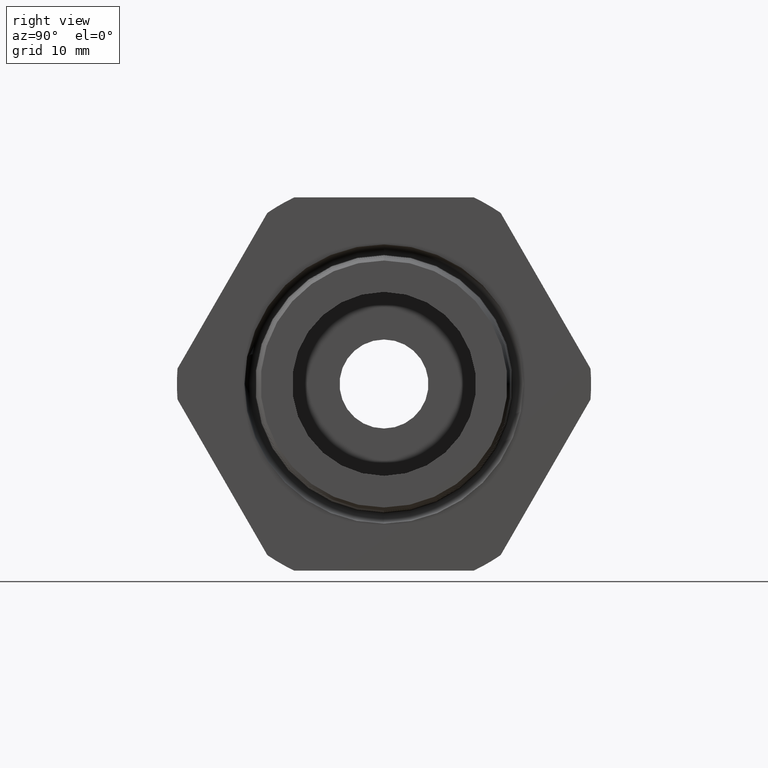
[diagram: clean part render]
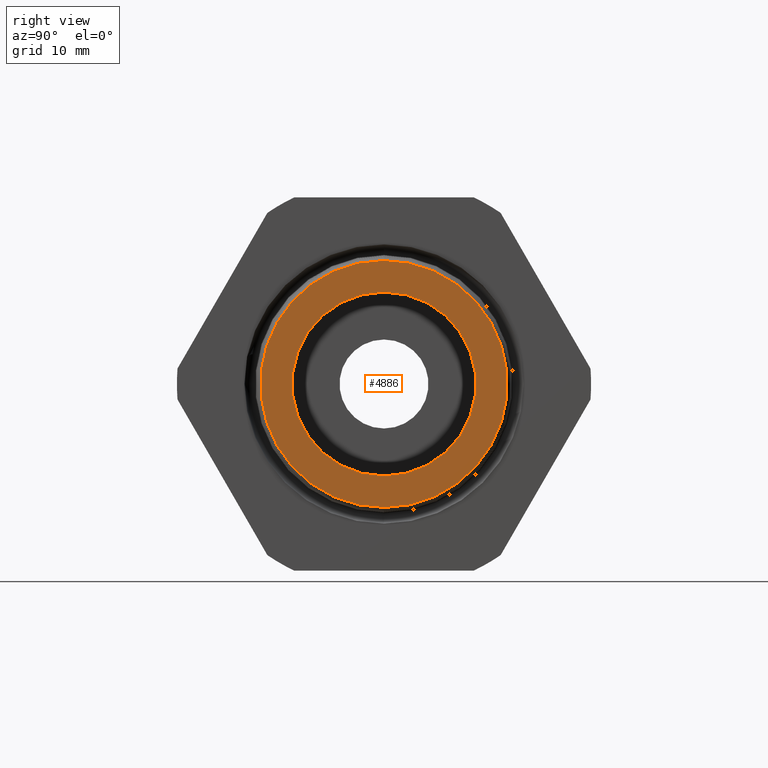
[diagram: same view with one face highlighted and labeled with its STEP entity id]
A machine part, right view. The second image highlights one B-rep face of the part: STEP entity #4886.
In plain terms, the highlighted planar face has unit normal (1, 0, 0).
Its self-contained STEP definition (entity closure, byte-faithful):
#152 = VERTEX_POINT ( 'NONE', #749 ) ;
#157 = EDGE_CURVE ( 'NONE', #160, #152, #800, .T. ) ;
#160 = VERTEX_POINT ( 'NONE', #790 ) ;
#163 = ORIENTED_EDGE ( 'NONE', *, *, #157, .T. ) ;
#207 = VERTEX_POINT ( 'NONE', #890 ) ;
#208 = EDGE_CURVE ( 'NONE', #209, #207, #889, .T. ) ;
#209 = VERTEX_POINT ( 'NONE', #884 ) ;
#749 = CARTESIAN_POINT ( 'NONE',  ( 0.1200000000000000200, 0.0000000000000000000, 0.4301292403640452600 ) ) ;
#790 = CARTESIAN_POINT ( 'NONE',  ( 0.1200000000000000200, 5.332067285935767100E-017, -0.4301292403640452600 ) ) ;
#797 = DIRECTION ( 'NONE',  ( 0.0000000000000000000, 0.0000000000000000000, -1.000000000000000000 ) ) ;
#798 = DIRECTION ( 'NONE',  ( 1.000000000000000000, 0.0000000000000000000, 0.0000000000000000000 ) ) ;
#799 = AXIS2_PLACEMENT_3D ( 'NONE', #806, #798, #797 ) ;
#800 = CIRCLE ( 'NONE', #799, 0.4301292403640452600 ) ;
#806 = CARTESIAN_POINT ( 'NONE',  ( 0.1200000000000000200, 0.0000000000000000000, 0.0000000000000000000 ) ) ;
#884 = CARTESIAN_POINT ( 'NONE',  ( 0.1200000000000000200, 0.0000000000000000000, 0.3204016610924743100 ) ) ;
#885 = DIRECTION ( 'NONE',  ( 0.0000000000000000000, 0.0000000000000000000, -1.000000000000000000 ) ) ;
#886 = DIRECTION ( 'NONE',  ( 1.000000000000000000, 0.0000000000000000000, 0.0000000000000000000 ) ) ;
#887 = CARTESIAN_POINT ( 'NONE',  ( 0.1200000000000000200, 0.0000000000000000000, 0.0000000000000000000 ) ) ;
#888 = AXIS2_PLACEMENT_3D ( 'NONE', #887, #886, #885 ) ;
#889 = CIRCLE ( 'NONE', #888, 0.3204016610924743100 ) ;
#890 = CARTESIAN_POINT ( 'NONE',  ( 0.1200000000000000200, 4.135642411978520400E-017, -0.3204016610924743100 ) ) ;
#2951 = DIRECTION ( 'NONE',  ( 0.0000000000000000000, 0.0000000000000000000, -1.000000000000000000 ) ) ;
#2952 = DIRECTION ( 'NONE',  ( 1.000000000000000000, 0.0000000000000000000, 0.0000000000000000000 ) ) ;
#2953 = CARTESIAN_POINT ( 'NONE',  ( 0.1200000000000000200, 0.3204016610924743100, 0.0000000000000000000 ) ) ;
#2954 = AXIS2_PLACEMENT_3D ( 'NONE', #2953, #2952, #2951 ) ;
#2955 = PLANE ( 'NONE',  #2954 ) ;
#2956 = FACE_BOUND ( 'NONE', #4864, .T. ) ;
#2957 = FACE_OUTER_BOUND ( 'NONE', #4887, .T. ) ;
#2958 = DIRECTION ( 'NONE',  ( 0.0000000000000000000, 0.0000000000000000000, -1.000000000000000000 ) ) ;
#2959 = DIRECTION ( 'NONE',  ( 1.000000000000000000, 0.0000000000000000000, 0.0000000000000000000 ) ) ;
#2960 = AXIS2_PLACEMENT_3D ( 'NONE', #2966, #2959, #2958 ) ;
#2961 = CIRCLE ( 'NONE', #2960, 0.3204016610924743100 ) ;
#2966 = CARTESIAN_POINT ( 'NONE',  ( 0.1200000000000000200, 0.0000000000000000000, 0.0000000000000000000 ) ) ;
#3094 = DIRECTION ( 'NONE',  ( 0.0000000000000000000, 0.0000000000000000000, -1.000000000000000000 ) ) ;
#3095 = DIRECTION ( 'NONE',  ( 1.000000000000000000, 0.0000000000000000000, 0.0000000000000000000 ) ) ;
#3096 = CARTESIAN_POINT ( 'NONE',  ( 0.1200000000000000200, 0.0000000000000000000, 0.0000000000000000000 ) ) ;
#3097 = AXIS2_PLACEMENT_3D ( 'NONE', #3096, #3095, #3094 ) ;
#3098 = CIRCLE ( 'NONE', #3097, 0.4301292403640452600 ) ;
#4864 = EDGE_LOOP ( 'NONE', ( #4865, #4866 ) ) ;
#4865 = ORIENTED_EDGE ( 'NONE', *, *, #208, .F. ) ;
#4866 = ORIENTED_EDGE ( 'NONE', *, *, #4883, .F. ) ;
#4883 = EDGE_CURVE ( 'NONE', #207, #209, #2961, .T. ) ;
#4886 = ADVANCED_FACE ( 'NONE', ( #2957, #2956 ), #2955, .T. ) ;
#4887 = EDGE_LOOP ( 'NONE', ( #4943, #163 ) ) ;
#4943 = ORIENTED_EDGE ( 'NONE', *, *, #4944, .T. ) ;
#4944 = EDGE_CURVE ( 'NONE', #152, #160, #3098, .T. ) ;